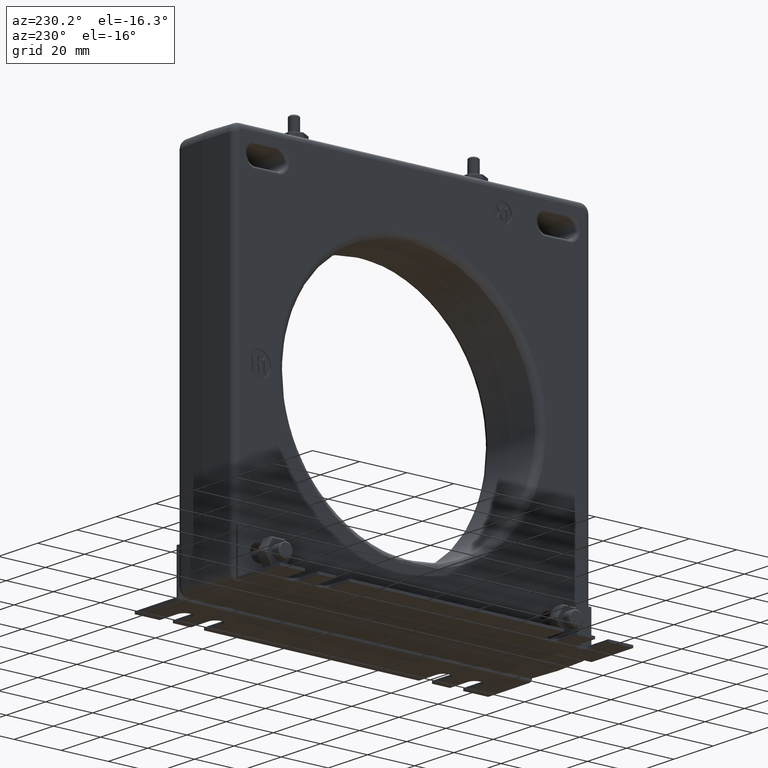
[diagram: clean part render]
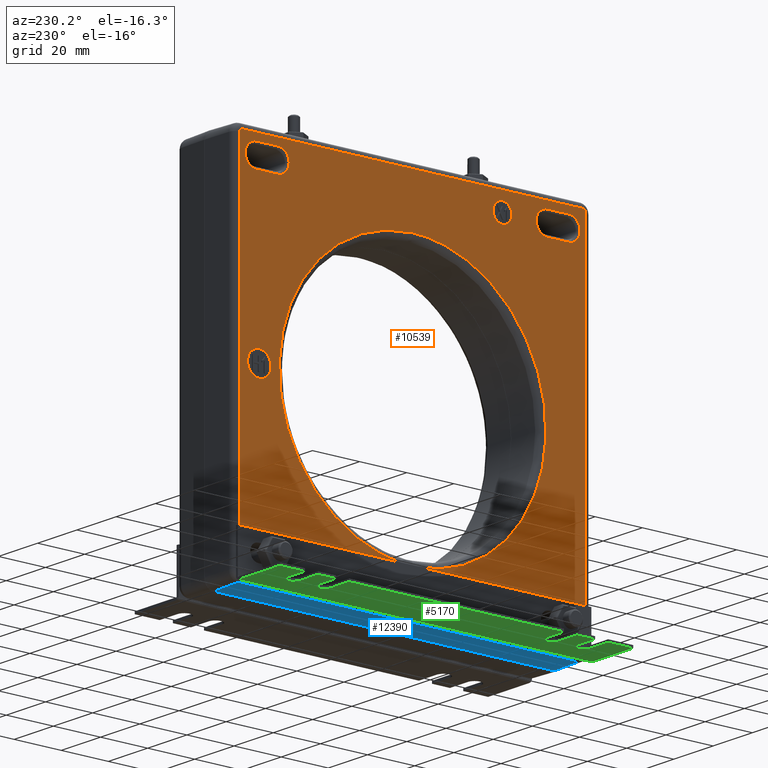
[diagram: same view with three faces highlighted in distinct colors, each labeled with its STEP entity id]
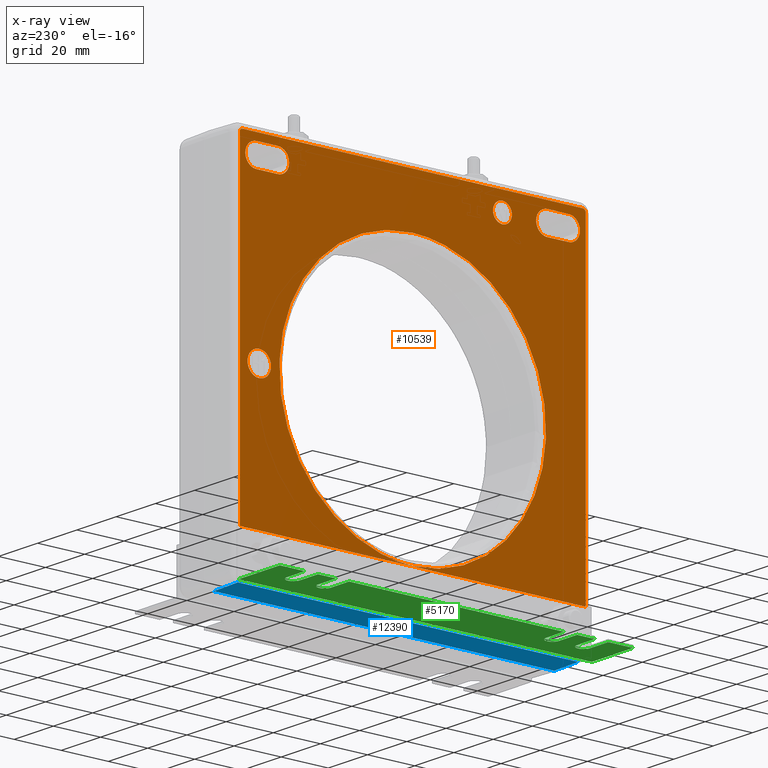
[diagram: x-ray of the same camera — body ghosted, the three highlighted faces saturated]
A machine part, auxiliary view with three faces highlighted in distinct colors.
The next image is the same camera in x-ray (body ghosted, the three faces saturated) — at least one of them is partly hidden behind the body in this view.
Their STEP definitions:

[orange] entity #10539 — the highlighted planar face has unit normal (1, -0, 0).
#8 = EDGE_CURVE ( 'NONE', #6791, #3299, #5995, .T. ) ;
#23 = ORIENTED_EDGE ( 'NONE', *, *, #3045, .F. ) ;
#39 = CARTESIAN_POINT ( 'NONE',  ( 0.03937007874015709119, 2.984544856102480104, 2.967351168208721912 ) ) ;
#58 = CARTESIAN_POINT ( 'NONE',  ( 0.03937007874013123687, 2.875911725223088133, 3.074239678267728593 ) ) ;
#60 = CARTESIAN_POINT ( 'NONE',  ( 0.03937007932118085501, -2.868262743863326136, 3.080604910952083664 ) ) ;
#213 = VERTEX_POINT ( 'NONE', #11847 ) ;
#233 = ORIENTED_EDGE ( 'NONE', *, *, #13495, .F. ) ;
#257 = DIRECTION ( 'NONE',  ( 0.000000000000000000, -1.000000000000000000, 0.000000000000000000 ) ) ;
#297 = CARTESIAN_POINT ( 'NONE',  ( 0.03937007874015716058, 1.092355033000180582E-15, 2.227586232135137845 ) ) ;
#358 = VERTEX_POINT ( 'NONE', #13406 ) ;
#365 = CARTESIAN_POINT ( 'NONE',  ( 0.03937007874015925613, 2.886794322883996067, 3.056195479470045662 ) ) ;
#514 = EDGE_CURVE ( 'NONE', #8427, #13134, #5406, .T. ) ;
#527 = DIRECTION ( 'NONE',  ( 0.000000000000000000, 0.000000000000000000, 1.000000000000000000 ) ) ;
#667 = LINE ( 'NONE', #7911, #6697 ) ;
#691 = EDGE_LOOP ( 'NONE', ( #233, #13355 ) ) ;
#868 = EDGE_CURVE ( 'NONE', #3836, #8944, #8519, .T. ) ;
#876 = CARTESIAN_POINT ( 'NONE',  ( 0.03937007912951403371, -2.867489077886231641, 3.081105248798122087 ) ) ;
#920 = CARTESIAN_POINT ( 'NONE',  ( 0.03937007874015712589, -2.250787401574803059, 2.967351168208720580 ) ) ;
#941 = CARTESIAN_POINT ( 'NONE',  ( 0.03937007882740609088, 2.854704344099860069, 3.087150549587978965 ) ) ;
#944 = CARTESIAN_POINT ( 'NONE',  ( 0.03937007918682389196, -2.867739048436531935, 3.080945258667302955 ) ) ;
#1009 = CARTESIAN_POINT ( 'NONE',  ( 0.03937007874054125611, 2.876492336291589957, 3.073633746084799334 ) ) ;
#1058 = DIRECTION ( 'NONE',  ( -1.000000000000000000, 0.000000000000000000, 0.000000000000000000 ) ) ;
#1080 = DIRECTION ( 'NONE',  ( -1.000000000000000000, 0.000000000000000000, 0.000000000000000000 ) ) ;
#1149 = CARTESIAN_POINT ( 'NONE',  ( 0.03937007885228872850, -2.865715039722779522, 3.082186250394237881 ) ) ;
#1244 = ORIENTED_EDGE ( 'NONE', *, *, #514, .F. ) ;
#1337 = CARTESIAN_POINT ( 'NONE',  ( 0.03937007874017462578, -2.875055753215716159, 3.075098263495993578 ) ) ;
#1376 = CARTESIAN_POINT ( 'NONE',  ( 0.03937007874015816672, 2.889066668023060558, 3.041811023622048360 ) ) ;
#1461 = ORIENTED_EDGE ( 'NONE', *, *, #4374, .F. ) ;
#1591 = LINE ( 'NONE', #12039, #11745 ) ;
#1611 = CIRCLE ( 'NONE', #2929, 0.1576521036964847189 ) ;
#1613 = EDGE_CURVE ( 'NONE', #358, #5997, #3309, .T. ) ;
#1630 = ORIENTED_EDGE ( 'NONE', *, *, #11956, .F. ) ;
#1725 = DIRECTION ( 'NONE',  ( -0.000000000000000000, 1.000000000000000000, -0.000000000000000000 ) ) ;
#1782 = EDGE_CURVE ( 'NONE', #13134, #9885, #3286, .T. ) ;
#1892 = ORIENTED_EDGE ( 'NONE', *, *, #1782, .F. ) ;
#1898 = CARTESIAN_POINT ( 'NONE',  ( 0.03937007874015925613, 2.871126934361459160, 3.079035056132509052 ) ) ;
#1900 = CARTESIAN_POINT ( 'NONE',  ( 0.03937007874015924919, -2.854100659624773773, 3.086918014856930625 ) ) ;
#1912 =( BOUNDED_CURVE ( )  B_SPLINE_CURVE ( 3, ( #8233, #39, #9182, #5027 ),
 .UNSPECIFIED., .F., .T. ) 
 B_SPLINE_CURVE_WITH_KNOTS ( ( 4, 4 ),
 ( 0.000000000000000000, 1.000000000000000000 ),
 .UNSPECIFIED. ) 
 CURVE ( )  GEOMETRIC_REPRESENTATION_ITEM ( )  RATIONAL_B_SPLINE_CURVE ( ( 1.000000000000000000, 0.3333333333333324822, 0.3333333333333324822, 1.000000000000000000 ) ) 
 REPRESENTATION_ITEM ( '' )  );
#1972 = CARTESIAN_POINT ( 'NONE',  ( 0.03937007874015924919, -2.861124805347352140, 3.084507341248539980 ) ) ;
#2008 = VERTEX_POINT ( 'NONE', #8915 ) ;
#2053 = CARTESIAN_POINT ( 'NONE',  ( 0.03937007874015724385, 8.195543980992795572E-16, 0.000000000000000000 ) ) ;
#2054 = AXIS2_PLACEMENT_3D ( 'NONE', #6737, #2779, #527 ) ;
#2112 = DIRECTION ( 'NONE',  ( 0.000000000000000000, 1.000000000000000000, 0.000000000000000000 ) ) ;
#2142 = EDGE_CURVE ( 'NONE', #3074, #6791, #1912, .T. ) ;
#2227 = VECTOR ( 'NONE', #2112, 39.37007874015748143 ) ;
#2408 = CARTESIAN_POINT ( 'NONE',  ( 0.03937007874015926306, 2.887014819090822915, 3.055498213693757403 ) ) ;
#2448 = CARTESIAN_POINT ( 'NONE',  ( 0.03937007874015712589, 2.250787401574803503, 2.967351168208720580 ) ) ;
#2514 = CARTESIAN_POINT ( 'NONE',  ( 0.03937007874054128387, -2.874342407456721205, 3.075783674916765964 ) ) ;
#2542 = CARTESIAN_POINT ( 'NONE',  ( 0.03937007873922650225, 2.562593993024535166, 0.1970221824366593100 ) ) ;
#2709 = CARTESIAN_POINT ( 'NONE',  ( 0.03937007874015712589, 2.609055118110235938, 2.967351168208720580 ) ) ;
#2735 = CARTESIAN_POINT ( 'NONE',  ( 0.03937007874015724385, 8.195543980992795572E-16, -2.233385826771653537 ) ) ;
#2779 = DIRECTION ( 'NONE',  ( -1.000000000000000000, 0.000000000000000000, 0.000000000000000000 ) ) ;
#2814 = CIRCLE ( 'NONE', #3469, 0.1970221824366593100 ) ;
#2881 = VERTEX_POINT ( 'NONE', #4929 ) ;
#2911 = CARTESIAN_POINT ( 'NONE',  ( 0.03937007874015816672, 2.842519685039370803, 3.088358006605736339 ) ) ;
#2929 = AXIS2_PLACEMENT_3D ( 'NONE', #4879, #13255, #12105 ) ;
#2945 = DIRECTION ( 'NONE',  ( 0.000000000000000000, 0.000000000000000000, -1.000000000000000000 ) ) ;
#2959 = EDGE_CURVE ( 'NONE', #8944, #12078, #5237, .T. ) ;
#2981 = CARTESIAN_POINT ( 'NONE',  ( 0.03937007874015712589, -2.250787401574803503, 2.591861430216476414 ) ) ;
#2988 = CARTESIAN_POINT ( 'NONE',  ( 0.03937007874015709119, 2.429921259842519721, 2.591861430216476414 ) ) ;
#2997 = CARTESIAN_POINT ( 'NONE',  ( 0.03937007874017461884, 2.875806924888862248, 3.074347091823399936 ) ) ;
#3045 = EDGE_CURVE ( 'NONE', #12971, #7664, #12948, .T. ) ;
#3067 = CARTESIAN_POINT ( 'NONE',  ( 0.03937007922697351864, 2.881546734775374929, 3.067196697129933813 ) ) ;
#3069 = CARTESIAN_POINT ( 'NONE',  ( 0.03937007874015925613, -2.845444069232907491, 3.088358006605735895 ) ) ;
#3074 = VERTEX_POINT ( 'NONE', #2709 ) ;
#3076 = DIRECTION ( 'NONE',  ( 1.000000000000000000, -0.000000000000000000, 0.000000000000000000 ) ) ;
#3199 = CARTESIAN_POINT ( 'NONE',  ( 0.03937007929754087615, 2.881034830706037830, 3.067979814916627301 ) ) ;
#3264 = CARTESIAN_POINT ( 'NONE',  ( 0.03937007874015709119, 8.195543980992795572E-16, 2.967351168208720580 ) ) ;
#3286 = B_SPLINE_CURVE_WITH_KNOTS ( 'NONE', 3,
 ( #1376, #5560, #8690, #10740, #9722, #2408, #365, #4531, #3436, #12550, #13499, #9278, #8248, #12343, #7096, #12410, #3067, #11324, #13363, #3199, #6207, #7225, #9407, #6006, #7364, #11260, #11464, #5112, #1009, #5180, #58, #2997, #4015, #11523, #1898, #4150, #941, #4224, #11390 ),
 .UNSPECIFIED., .F., .F.,
 ( 4, 2, 2, 2, 2, 2, 1, 1, 1, 2, 2, 2, 2, 2, 2, 2, 2, 2, 2, 2, 4 ),
 ( 0.000000000000000000, 0.1250000000006452061, 0.1875000000009656442, 0.2187500000011225743, 0.2500000000012795320, 0.3125000000015854540, 0.3437500000017430501, 0.3593750000018273161, 0.3671875000018751112, 0.3710937500019047541, 0.3750000000019343971, 0.4062500000018812174, 0.4218750000018609003, 0.4296875000018459123, 0.4375000000018309243, 0.4687500000017882362, 0.4843750000017741364, 0.4921875000017482682, 0.5000000000017222890, 0.7500000000008612000, 1.000000000000000000 ),
 .UNSPECIFIED. ) ;
#3299 = VERTEX_POINT ( 'NONE', #8168 ) ;
#3309 =( BOUNDED_CURVE ( )  B_SPLINE_CURVE ( 3, ( #7407, #12720, #11501, #297 ),
 .UNSPECIFIED., .F., .T. ) 
 B_SPLINE_CURVE_WITH_KNOTS ( ( 4, 4 ),
 ( 0.000000000000000000, 0.5000000000000000000 ),
 .UNSPECIFIED. ) 
 CURVE ( )  GEOMETRIC_REPRESENTATION_ITEM ( )  RATIONAL_B_SPLINE_CURVE ( ( 1.000000000000000000, 0.3333333333333333703, 0.3333333333333333703, 1.000000000000000000 ) ) 
 REPRESENTATION_ITEM ( '' )  );
#3436 = CARTESIAN_POINT ( 'NONE',  ( 0.03937007874015926306, 2.886089786568104110, 3.058209010741597567 ) ) ;
#3465 = CARTESIAN_POINT ( 'NONE',  ( 0.03937007874013123687, -2.874948339655312601, 3.075203063834647033 ) ) ;
#3467 = CARTESIAN_POINT ( 'NONE',  ( 0.03937007874015709119, -2.984544856102480992, 2.967351168208720580 ) ) ;
#3469 = AXIS2_PLACEMENT_3D ( 'NONE', #9324, #1058, #13479 ) ;
#3533 = CARTESIAN_POINT ( 'NONE',  ( 0.03937007882740607700, -2.883195426353780899, 3.065255054840221760 ) ) ;
#3547 = CARTESIAN_POINT ( 'NONE',  ( 0.03937007873922650225, -1.500000000000000222, 2.937967064326405975 ) ) ;
#3836 = VERTEX_POINT ( 'NONE', #2981 ) ;
#3923 = EDGE_CURVE ( 'NONE', #7664, #12971, #2814, .T. ) ;
#3931 = VECTOR ( 'NONE', #6064, 39.37007874015748143 ) ;
#3940 = CARTESIAN_POINT ( 'NONE',  ( 0.03937007874015712589, -2.250787401574803503, 2.591861430216476414 ) ) ;
#4015 = CARTESIAN_POINT ( 'NONE',  ( 0.03937007874018861459, 2.875610315565484409, 3.074547002419122599 ) ) ;
#4018 = CARTESIAN_POINT ( 'NONE',  ( 0.03937007898571268094, -2.870897232921580056, 3.078717343461822686 ) ) ;
#4026 = FACE_BOUND ( 'NONE', #7437, .T. ) ;
#4150 = CARTESIAN_POINT ( 'NONE',  ( 0.03937007882740607700, 2.865963716257544647, 3.082486764936458012 ) ) ;
#4153 = CARTESIAN_POINT ( 'NONE',  ( 0.03937007877037100589, -2.872747233411221846, 3.077229139774823263 ) ) ;
#4161 = CARTESIAN_POINT ( 'NONE',  ( 0.03937007874015712589, -2.609055118110235938, 2.967351168208720580 ) ) ;
#4224 = CARTESIAN_POINT ( 'NONE',  ( 0.03937007874015925613, 2.848612670863884144, 3.088360769420047891 ) ) ;
#4227 = CARTESIAN_POINT ( 'NONE',  ( 0.03937007874015816672, -2.842519685039369470, 3.088358006605736339 ) ) ;
#4365 = ORIENTED_EDGE ( 'NONE', *, *, #6265, .F. ) ;
#4374 = EDGE_CURVE ( 'NONE', #9885, #2881, #5861, .T. ) ;
#4435 = EDGE_CURVE ( 'NONE', #12078, #8825, #7161, .T. ) ;
#4448 = CARTESIAN_POINT ( 'NONE',  ( 0.03937007874015707037, 2.889066668023061890, 0.1146456692913393749 ) ) ;
#4485 = VECTOR ( 'NONE', #257, 39.37007874015748143 ) ;
#4523 = EDGE_CURVE ( 'NONE', #2881, #13505, #9818, .T. ) ;
#4531 = CARTESIAN_POINT ( 'NONE',  ( 0.03937007874015924919, 2.886320732246605125, 3.057578851305826184 ) ) ;
#4627 = CARTESIAN_POINT ( 'NONE',  ( 0.03937007874018861459, -2.875255663822641861, 3.074901654161837250 ) ) ;
#4636 = CARTESIAN_POINT ( 'NONE',  ( 0.03937007874015708425, 1.875297663582557783, 2.591861430216476414 ) ) ;
#4871 = VECTOR ( 'NONE', #8057, 39.37007874015748143 ) ;
#4879 = CARTESIAN_POINT ( 'NONE',  ( 0.03937007873922650225, -1.500000000000000222, 2.780314960629921561 ) ) ;
#4929 = CARTESIAN_POINT ( 'NONE',  ( 0.03937007874015816672, -2.842519685039369470, 3.088358006605736339 ) ) ;
#5004 = CARTESIAN_POINT ( 'NONE',  ( 0.03937007873922650225, 2.562593993024535166, -0.1970221824366593100 ) ) ;
#5027 = CARTESIAN_POINT ( 'NONE',  ( 0.03937007874015712589, 2.609055118110116034, 2.591861430216476858 ) ) ;
#5043 = CARTESIAN_POINT ( 'NONE',  ( 0.03937007873922650225, -1.500000000000000222, 2.780314960629921561 ) ) ;
#5046 = CARTESIAN_POINT ( 'NONE',  ( 0.03937007911091189999, -2.870031023678087490, 3.079372066062535662 ) ) ;
#5053 = FACE_OUTER_BOUND ( 'NONE', #8725, .T. ) ;
#5112 = CARTESIAN_POINT ( 'NONE',  ( 0.03937007875187067268, 2.877303757845250498, 3.072754310227568286 ) ) ;
#5154 =( BOUNDED_CURVE ( )  B_SPLINE_CURVE ( 3, ( #6946, #9131, #13290, #3940 ),
 .UNSPECIFIED., .F., .T. ) 
 B_SPLINE_CURVE_WITH_KNOTS ( ( 4, 4 ),
 ( 0.000000000000000000, 1.000000000000000000 ),
 .UNSPECIFIED. ) 
 CURVE ( )  GEOMETRIC_REPRESENTATION_ITEM ( )  RATIONAL_B_SPLINE_CURVE ( ( 1.000000000000000000, 0.3333333333333338144, 0.3333333333333338144, 1.000000000000000000 ) ) 
 REPRESENTATION_ITEM ( '' )  );
#5180 = CARTESIAN_POINT ( 'NONE',  ( 0.03937007874027449728, 2.876244985067139215, 3.073894476164710898 ) ) ;
#5183 = CIRCLE ( 'NONE', #12794, 0.1576521036964847189 ) ;
#5205 = EDGE_LOOP ( 'NONE', ( #12008, #7356, #5916, #11026 ) ) ;
#5237 =( BOUNDED_CURVE ( )  B_SPLINE_CURVE ( 3, ( #8518, #12676, #3467, #12877 ),
 .UNSPECIFIED., .F., .T. ) 
 B_SPLINE_CURVE_WITH_KNOTS ( ( 4, 4 ),
 ( 0.000000000000000000, 1.000000000000000000 ),
 .UNSPECIFIED. ) 
 CURVE ( )  GEOMETRIC_REPRESENTATION_ITEM ( )  RATIONAL_B_SPLINE_CURVE ( ( 1.000000000000000000, 0.3333333333333342585, 0.3333333333333342585, 1.000000000000000000 ) ) 
 REPRESENTATION_ITEM ( '' )  );
#5321 = CARTESIAN_POINT ( 'NONE',  ( 0.03937007916828393767, -2.869654650071805868, 3.079643898618940501 ) ) ;
#5388 = CARTESIAN_POINT ( 'NONE',  ( 0.03937007874027449034, -2.874603137540768127, 3.075536323689139540 ) ) ;
#5392 = CARTESIAN_POINT ( 'NONE',  ( 0.03937007874015709119, 8.195543980992795572E-16, 2.591861430216476414 ) ) ;
#5406 = LINE ( 'NONE', #4448, #9139 ) ;
#5560 = CARTESIAN_POINT ( 'NONE',  ( 0.03937007874015924919, 2.889066668023058337, 3.044735407815586381 ) ) ;
#5854 = CARTESIAN_POINT ( 'NONE',  ( 0.03937007874015708425, 1.875297663582557783, 2.967351168208722356 ) ) ;
#5861 = LINE ( 'NONE', #12138, #9428 ) ;
#5916 = ORIENTED_EDGE ( 'NONE', *, *, #7255, .F. ) ;
#5930 = DIRECTION ( 'NONE',  ( -0.000000000000000000, -1.000000000000000000, -0.000000000000000000 ) ) ;
#5995 = LINE ( 'NONE', #2988, #3931 ) ;
#5997 = VERTEX_POINT ( 'NONE', #9395 ) ;
#6006 = CARTESIAN_POINT ( 'NONE',  ( 0.03937007898571265319, 2.879426004894307223, 3.070188571484436579 ) ) ;
#6064 = DIRECTION ( 'NONE',  ( -0.000000000000000000, -1.000000000000000000, -0.000000000000000000 ) ) ;
#6072 = CARTESIAN_POINT ( 'NONE',  ( 0.03937007874015816672, -2.889066668023059226, 3.041811023622047028 ) ) ;
#6074 = CARTESIAN_POINT ( 'NONE',  ( 0.03937007874015925613, -2.856904140887368548, 3.086085661466673624 ) ) ;
#6192 =( BOUNDED_CURVE ( )  B_SPLINE_CURVE ( 3, ( #7906, #4636, #5854, #2448 ),
 .UNSPECIFIED., .F., .T. ) 
 B_SPLINE_CURVE_WITH_KNOTS ( ( 4, 4 ),
 ( 0.000000000000000000, 1.000000000000000000 ),
 .UNSPECIFIED. ) 
 CURVE ( )  GEOMETRIC_REPRESENTATION_ITEM ( )  RATIONAL_B_SPLINE_CURVE ( ( 1.000000000000000000, 0.3333333333333329263, 0.3333333333333329263, 1.000000000000000000 ) ) 
 REPRESENTATION_ITEM ( '' )  );
#6207 = CARTESIAN_POINT ( 'NONE',  ( 0.03937007916828392379, 2.880352560062015232, 3.068945988618324794 ) ) ;
#6210 = CARTESIAN_POINT ( 'NONE',  ( 0.03937007874015925613, -2.858287512723149071, 3.085612070829283571 ) ) ;
#6265 = EDGE_CURVE ( 'NONE', #2008, #3074, #1591, .T. ) ;
#6337 = CARTESIAN_POINT ( 'NONE',  ( 0.03937007922697351170, -2.867905358547250483, 3.080838073358117324 ) ) ;
#6536 = CARTESIAN_POINT ( 'NONE',  ( 0.03937007874015924919, -2.875298674063444526, 3.074859287120758733 ) ) ;
#6602 = ORIENTED_EDGE ( 'NONE', *, *, #4523, .F. ) ;
#6678 = ORIENTED_EDGE ( 'NONE', *, *, #2142, .F. ) ;
#6697 = VECTOR ( 'NONE', #10094, 39.37007874015748143 ) ;
#6713 = CARTESIAN_POINT ( 'NONE',  ( 0.03937007874015712589, -2.609055118109756322, 2.591861430216476414 ) ) ;
#6737 = CARTESIAN_POINT ( 'NONE',  ( 0.03937007873922650225, 2.562593993024535166, 0.000000000000000000 ) ) ;
#6791 = VERTEX_POINT ( 'NONE', #11807 ) ;
#6946 = CARTESIAN_POINT ( 'NONE',  ( 0.03937007874015712589, -2.250787401574803059, 2.967351168208720580 ) ) ;
#7093 = EDGE_CURVE ( 'NONE', #3299, #2008, #6192, .T. ) ;
#7096 = CARTESIAN_POINT ( 'NONE',  ( 0.03937007912951403371, 2.881813910215384134, 3.066780416468914527 ) ) ;
#7161 = LINE ( 'NONE', #3264, #2227 ) ;
#7225 = CARTESIAN_POINT ( 'NONE',  ( 0.03937007911091188611, 2.880080727503860238, 3.069322362227906886 ) ) ;
#7229 = CARTESIAN_POINT ( 'NONE',  ( 0.03937007874015924919, -2.852677283176246359, 3.087259707109045959 ) ) ;
#7232 = ORIENTED_EDGE ( 'NONE', *, *, #7093, .F. ) ;
#7235 = FACE_BOUND ( 'NONE', #691, .T. ) ;
#7255 = EDGE_CURVE ( 'NONE', #8825, #3836, #5154, .T. ) ;
#7356 = ORIENTED_EDGE ( 'NONE', *, *, #868, .F. ) ;
#7364 = CARTESIAN_POINT ( 'NONE',  ( 0.03937007892271938286, 2.879053924936663567, 3.070664481866840934 ) ) ;
#7407 = CARTESIAN_POINT ( 'NONE',  ( 0.03937007874015716058, 8.195543980992795572E-16, -2.227586232135137845 ) ) ;
#7437 = EDGE_LOOP ( 'NONE', ( #23, #8609 ) ) ;
#7484 = ORIENTED_EDGE ( 'NONE', *, *, #11198, .F. ) ;
#7522 = DIRECTION ( 'NONE',  ( -0.000000000000000000, -3.542511246410839985E-16, 1.000000000000000000 ) ) ;
#7664 = VERTEX_POINT ( 'NONE', #5004 ) ;
#7699 = CARTESIAN_POINT ( 'NONE',  ( 0.03937007882740607700, -2.887859211005301407, 3.053995682682536739 ) ) ;
#7861 = LINE ( 'NONE', #2735, #4871 ) ;
#7906 = CARTESIAN_POINT ( 'NONE',  ( 0.03937007874015712589, 2.250787401574803503, 2.591861430216476414 ) ) ;
#7911 = CARTESIAN_POINT ( 'NONE',  ( 0.03937007874015707037, -2.889066668023058782, 0.1146456692913378067 ) ) ;
#8057 = DIRECTION ( 'NONE',  ( 0.000000000000000000, 1.000000000000000000, 0.000000000000000000 ) ) ;
#8089 = CARTESIAN_POINT ( 'NONE',  ( 0.03937007874015707037, 4.455172464270276578, 2.227586232135137401 ) ) ;
#8168 = CARTESIAN_POINT ( 'NONE',  ( 0.03937007874015712589, 2.250787401574803503, 2.591861430216476414 ) ) ;
#8184 = CARTESIAN_POINT ( 'NONE',  ( 0.03937007888693583313, -2.871668457839289257, 3.078109102014213505 ) ) ;
#8197 = CARTESIAN_POINT ( 'NONE',  ( 0.03937007874015816672, 2.889066668023060558, 3.041811023622048360 ) ) ;
#8233 = CARTESIAN_POINT ( 'NONE',  ( 0.03937007874015712589, 2.609055118110235938, 2.967351168208720580 ) ) ;
#8248 = CARTESIAN_POINT ( 'NONE',  ( 0.03937007885228870768, 2.882894911811522576, 3.065006378305468182 ) ) ;
#8324 = CARTESIAN_POINT ( 'NONE',  ( 0.03937007879536144617, -2.864674792987554230, 3.082758745711915438 ) ) ;
#8426 = EDGE_LOOP ( 'NONE', ( #6678, #4365, #7232, #11072 ) ) ;
#8427 = VERTEX_POINT ( 'NONE', #9543 ) ;
#8518 = CARTESIAN_POINT ( 'NONE',  ( 0.03937007874015712589, -2.609055118109756322, 2.591861430216476414 ) ) ;
#8519 = LINE ( 'NONE', #5392, #4485 ) ;
#8609 = ORIENTED_EDGE ( 'NONE', *, *, #3923, .F. ) ;
#8690 = CARTESIAN_POINT ( 'NONE',  ( 0.03937007874015926306, 2.888790261807281823, 3.047659730603943018 ) ) ;
#8725 = EDGE_LOOP ( 'NONE', ( #1630, #11908, #6602, #1461, #1892, #1244 ) ) ;
#8825 = VERTEX_POINT ( 'NONE', #920 ) ;
#8835 = CARTESIAN_POINT ( 'NONE',  ( 0.03937007874015739650, -2.889066668023057005, -2.233385826771653537 ) ) ;
#8915 = CARTESIAN_POINT ( 'NONE',  ( 0.03937007874015712589, 2.250787401574803503, 2.967351168208720580 ) ) ;
#8944 = VERTEX_POINT ( 'NONE', #6713 ) ;
#9131 = CARTESIAN_POINT ( 'NONE',  ( 0.03937007874015709119, -1.875297663582560670, 2.967351168208720136 ) ) ;
#9139 = VECTOR ( 'NONE', #7522, 39.37007874015748143 ) ;
#9144 = FACE_BOUND ( 'NONE', #8426, .T. ) ;
#9182 = CARTESIAN_POINT ( 'NONE',  ( 0.03937007874015709119, 2.984544856102480104, 2.591861430216477302 ) ) ;
#9206 = CARTESIAN_POINT ( 'NONE',  ( 0.03937007892271939674, -2.871373143295053776, 3.078345263510787078 ) ) ;
#9278 = CARTESIAN_POINT ( 'NONE',  ( 0.03937007879536146004, 2.883467407129212123, 3.063966131570244666 ) ) ;
#9281 = CARTESIAN_POINT ( 'NONE',  ( 0.03937007901782763747, -2.870671239959057708, 3.078890292664638206 ) ) ;
#9301 = VERTEX_POINT ( 'NONE', #3547 ) ;
#9324 = CARTESIAN_POINT ( 'NONE',  ( 0.03937007873922650225, 2.562593993024535166, 0.000000000000000000 ) ) ;
#9395 = CARTESIAN_POINT ( 'NONE',  ( 0.03937007874015716058, 1.092355033000180582E-15, 2.227586232135137845 ) ) ;
#9407 = CARTESIAN_POINT ( 'NONE',  ( 0.03937007901782762359, 2.879598954099777064, 3.069962578518120822 ) ) ;
#9410 = CARTESIAN_POINT ( 'NONE',  ( 0.03937007872911880285, -2.862566806633510375, 3.083850510613176610 ) ) ;
#9428 = VECTOR ( 'NONE', #5930, 39.37007874015748143 ) ;
#9543 = CARTESIAN_POINT ( 'NONE',  ( 0.03937007874015699405, 2.889066668023063222, -2.233385826771653537 ) ) ;
#9552 = EDGE_LOOP ( 'NONE', ( #12176, #7484 ) ) ;
#9722 = CARTESIAN_POINT ( 'NONE',  ( 0.03937007874015925613, 2.887626676274253956, 3.053391998207450442 ) ) ;
#9818 = B_SPLINE_CURVE_WITH_KNOTS ( 'NONE', 3,
 ( #4227, #3069, #11262, #7229, #1900, #11393, #6074, #6210, #13502, #1972, #9410, #8324, #1149, #10237, #876, #944, #6337, #10372, #60, #10502, #5321, #5046, #9281, #4018, #9206, #8184, #4153, #12481, #2514, #5388, #3465, #1337, #4627, #6536, #12875, #3533, #7699, #11862, #12944 ),
 .UNSPECIFIED., .F., .F.,
 ( 4, 2, 2, 2, 2, 2, 1, 1, 1, 2, 2, 2, 2, 2, 2, 2, 2, 2, 2, 2, 4 ),
 ( 0.000000000000000000, 0.1249999999998843425, 0.1874999999998265277, 0.2187499999997943589, 0.2499999999997621902, 0.3124999999996777578, 0.3437499999996355693, 0.3593749999996199151, 0.3671874999996177502, 0.3710937499996199707, 0.3749999999996221911, 0.4062499999996376232, 0.4218749999996390665, 0.4296874999996397881, 0.4374999999996405098, 0.4687499999996628253, 0.4843749999996745381, 0.4921874999996804223, 0.4999999999996863620, 0.7499999999998431255, 1.000000000000000000 ),
 .UNSPECIFIED. ) ;
#9885 = VERTEX_POINT ( 'NONE', #2911 ) ;
#10094 = DIRECTION ( 'NONE',  ( -0.000000000000000000, 1.771255623205419992E-16, -1.000000000000000000 ) ) ;
#10124 = VERTEX_POINT ( 'NONE', #8835 ) ;
#10211 = EDGE_CURVE ( 'NONE', #213, #9301, #1611, .T. ) ;
#10237 = CARTESIAN_POINT ( 'NONE',  ( 0.03937007901489803646, -2.866902310100226003, 3.081473022383938165 ) ) ;
#10372 = CARTESIAN_POINT ( 'NONE',  ( 0.03937007926371533656, -2.868047213854255872, 3.080745750052186427 ) ) ;
#10502 = CARTESIAN_POINT ( 'NONE',  ( 0.03937007929754089003, -2.868688476370757634, 3.080326169263890357 ) ) ;
#10539 = ADVANCED_FACE ( 'NONE', ( #4026, #7235, #5053, #12420, #9144, #13305 ), #13377, .F. ) ;
#10740 = CARTESIAN_POINT ( 'NONE',  ( 0.03937007874015926306, 2.887968368526370178, 3.051968621758924360 ) ) ;
#11026 = ORIENTED_EDGE ( 'NONE', *, *, #4435, .F. ) ;
#11072 = ORIENTED_EDGE ( 'NONE', *, *, #8, .F. ) ;
#11198 = EDGE_CURVE ( 'NONE', #5997, #358, #12564, .T. ) ;
#11260 = CARTESIAN_POINT ( 'NONE',  ( 0.03937007888693581925, 2.878817763438016097, 3.070959796413925691 ) ) ;
#11262 = CARTESIAN_POINT ( 'NONE',  ( 0.03937007874015925613, -2.848368392021265905, 3.088081600389959824 ) ) ;
#11324 = CARTESIAN_POINT ( 'NONE',  ( 0.03937007926371532962, 2.881454411467417653, 3.067338552440037169 ) ) ;
#11390 = CARTESIAN_POINT ( 'NONE',  ( 0.03937007874015816672, 2.842519685039370803, 3.088358006605736339 ) ) ;
#11391 = DIRECTION ( 'NONE',  ( 0.000000000000000000, 0.000000000000000000, 1.000000000000000000 ) ) ;
#11393 = CARTESIAN_POINT ( 'NONE',  ( 0.03937007874015926306, -2.856206875111080290, 3.086306157673500472 ) ) ;
#11464 = CARTESIAN_POINT ( 'NONE',  ( 0.03937007877037097814, 2.877937801165976861, 3.072038572026079883 ) ) ;
#11501 = CARTESIAN_POINT ( 'NONE',  ( 0.03937007874015707037, -4.455172464270273913, 2.227586232135138733 ) ) ;
#11523 = CARTESIAN_POINT ( 'NONE',  ( 0.03937007874015925613, 2.875567948538081620, 3.074590012646122528 ) ) ;
#11655 = AXIS2_PLACEMENT_3D ( 'NONE', #2053, #3076, #2945 ) ;
#11745 = VECTOR ( 'NONE', #1725, 39.37007874015748143 ) ;
#11807 = CARTESIAN_POINT ( 'NONE',  ( 0.03937007874015712589, 2.609055118110116034, 2.591861430216476858 ) ) ;
#11847 = CARTESIAN_POINT ( 'NONE',  ( 0.03937007873922650225, -1.500000000000000222, 2.622662856933436704 ) ) ;
#11862 = CARTESIAN_POINT ( 'NONE',  ( 0.03937007874015925613, -2.889069430837370334, 3.047904009446561258 ) ) ;
#11908 = ORIENTED_EDGE ( 'NONE', *, *, #13338, .F. ) ;
#11956 = EDGE_CURVE ( 'NONE', #10124, #8427, #7861, .T. ) ;
#12008 = ORIENTED_EDGE ( 'NONE', *, *, #2959, .F. ) ;
#12039 = CARTESIAN_POINT ( 'NONE',  ( 0.03937007874015709119, 2.429921259842519721, 2.967351168208720580 ) ) ;
#12078 = VERTEX_POINT ( 'NONE', #4161 ) ;
#12105 = DIRECTION ( 'NONE',  ( 0.000000000000000000, 0.000000000000000000, 1.000000000000000000 ) ) ;
#12138 = CARTESIAN_POINT ( 'NONE',  ( 0.03937007874015707037, 1.912293595564984056E-15, 3.088358006605736339 ) ) ;
#12176 = ORIENTED_EDGE ( 'NONE', *, *, #1613, .F. ) ;
#12251 = CARTESIAN_POINT ( 'NONE',  ( 0.03937007874015707037, 4.455172464270276578, -2.227586232135137845 ) ) ;
#12343 = CARTESIAN_POINT ( 'NONE',  ( 0.03937007901489802952, 2.882181683801209537, 3.066193648682912443 ) ) ;
#12410 = CARTESIAN_POINT ( 'NONE',  ( 0.03937007918682389196, 2.881653920084562781, 3.067030387019214821 ) ) ;
#12420 = FACE_BOUND ( 'NONE', #9552, .T. ) ;
#12481 = CARTESIAN_POINT ( 'NONE',  ( 0.03937007875187067268, -2.873462971598404803, 3.076595096469263435 ) ) ;
#12550 = CARTESIAN_POINT ( 'NONE',  ( 0.03937007874015926306, 2.885216002665859314, 3.060416143930036359 ) ) ;
#12564 =( BOUNDED_CURVE ( )  B_SPLINE_CURVE ( 3, ( #13207, #8089, #12251, #13340 ),
 .UNSPECIFIED., .F., .F. ) 
 B_SPLINE_CURVE_WITH_KNOTS ( ( 4, 4 ),
 ( 0.5000000000000000000, 1.000000000000000000 ),
 .UNSPECIFIED. ) 
 CURVE ( )  GEOMETRIC_REPRESENTATION_ITEM ( )  RATIONAL_B_SPLINE_CURVE ( ( 1.000000000000000000, 0.3333333333333333703, 0.3333333333333333703, 1.000000000000000000 ) ) 
 REPRESENTATION_ITEM ( '' )  );
#12676 = CARTESIAN_POINT ( 'NONE',  ( 0.03937007874015709119, -2.984544856102480548, 2.591861430216476414 ) ) ;
#12720 = CARTESIAN_POINT ( 'NONE',  ( 0.03937007874015707037, -4.455172464270273913, -2.227586232135137845 ) ) ;
#12794 = AXIS2_PLACEMENT_3D ( 'NONE', #5043, #1080, #11391 ) ;
#12875 = CARTESIAN_POINT ( 'NONE',  ( 0.03937007874015925613, -2.879743717549832827, 3.070418272944135829 ) ) ;
#12877 = CARTESIAN_POINT ( 'NONE',  ( 0.03937007874015712589, -2.609055118110235938, 2.967351168208720580 ) ) ;
#12944 = CARTESIAN_POINT ( 'NONE',  ( 0.03937007874015816672, -2.889066668023059226, 3.041811023622047028 ) ) ;
#12948 = CIRCLE ( 'NONE', #2054, 0.1970221824366593100 ) ;
#12971 = VERTEX_POINT ( 'NONE', #2542 ) ;
#13134 = VERTEX_POINT ( 'NONE', #8197 ) ;
#13207 = CARTESIAN_POINT ( 'NONE',  ( 0.03937007874015716058, 1.092355033000180582E-15, 2.227586232135137845 ) ) ;
#13255 = DIRECTION ( 'NONE',  ( -1.000000000000000000, 0.000000000000000000, 0.000000000000000000 ) ) ;
#13290 = CARTESIAN_POINT ( 'NONE',  ( 0.03937007874015709119, -1.875297663582560670, 2.591861430216477302 ) ) ;
#13305 = FACE_BOUND ( 'NONE', #5205, .T. ) ;
#13338 = EDGE_CURVE ( 'NONE', #13505, #10124, #667, .T. ) ;
#13340 = CARTESIAN_POINT ( 'NONE',  ( 0.03937007874015716058, 8.195543980992795572E-16, -2.227586232135137845 ) ) ;
#13355 = ORIENTED_EDGE ( 'NONE', *, *, #10211, .F. ) ;
#13363 = CARTESIAN_POINT ( 'NONE',  ( 0.03937007932118084808, 2.881313572385540756, 3.067554082421211081 ) ) ;
#13377 = PLANE ( 'NONE',  #11655 ) ;
#13406 = CARTESIAN_POINT ( 'NONE',  ( 0.03937007874015716058, 8.195543980992795572E-16, -2.227586232135137845 ) ) ;
#13479 = DIRECTION ( 'NONE',  ( 0.000000000000000000, 0.000000000000000000, 1.000000000000000000 ) ) ;
#13495 = EDGE_CURVE ( 'NONE', #9301, #213, #5183, .T. ) ;
#13499 = CARTESIAN_POINT ( 'NONE',  ( 0.03937007872911880979, 2.884559172030489282, 3.061858145216198146 ) ) ;
#13502 = CARTESIAN_POINT ( 'NONE',  ( 0.03937007874015925613, -2.858917672158922674, 3.085381125150780335 ) ) ;
#13505 = VERTEX_POINT ( 'NONE', #6072 ) ;

[blue] entity #12390 — the highlighted planar face has unit normal (-0.0262, 0, -0.9997).
#400 = CARTESIAN_POINT ( 'NONE',  ( 19645.66929133858503, 2.842519685039373911, -517.3938719571056026 ) ) ;
#424 = ORIENTED_EDGE ( 'NONE', *, *, #9268, .F. ) ;
#792 = LINE ( 'NONE', #12326, #7472 ) ;
#805 = DIRECTION ( 'NONE',  ( -0.9996573249755572599, 0.000000000000000000, 0.02617694830787320459 ) ) ;
#1325 = EDGE_LOOP ( 'NONE', ( #424, #7920, #1935, #10526 ) ) ;
#1749 = CARTESIAN_POINT ( 'NONE',  ( 0.1352188043005803919, -2.842519685039371247, -2.957458137020289701 ) ) ;
#1935 = ORIENTED_EDGE ( 'NONE', *, *, #8805, .T. ) ;
#2119 = EDGE_CURVE ( 'NONE', #7249, #9213, #9326, .T. ) ;
#2909 = DIRECTION ( 'NONE',  ( 9.531591803919131266E-18, 1.000000000000000000, 3.639968056398278551E-16 ) ) ;
#2925 = CARTESIAN_POINT ( 'NONE',  ( 0.6122047244094452889, 2.842519685039373911, -2.969948452910292858 ) ) ;
#3065 = PLANE ( 'NONE',  #5090 ) ;
#3336 = DIRECTION ( 'NONE',  ( 0.000000000000000000, 1.000000000000000000, 0.000000000000000000 ) ) ;
#3413 = CARTESIAN_POINT ( 'NONE',  ( 0.6122047244098194341, -2.842519685039371247, -2.969948452910307957 ) ) ;
#3684 = VECTOR ( 'NONE', #2909, 39.37007874015748143 ) ;
#4077 = DIRECTION ( 'NONE',  ( -0.02617694830787320806, 3.641215810115012169E-16, -0.9996573249755573709 ) ) ;
#4368 = LINE ( 'NONE', #10446, #12310 ) ;
#4372 = DIRECTION ( 'NONE',  ( -0.9996573249763403002, 0.000000000000000000, 0.02617694827796848006 ) ) ;
#5090 = AXIS2_PLACEMENT_3D ( 'NONE', #8246, #4077, #805 ) ;
#6069 = FACE_OUTER_BOUND ( 'NONE', #1325, .T. ) ;
#6804 = VERTEX_POINT ( 'NONE', #3413 ) ;
#6891 = EDGE_CURVE ( 'NONE', #6804, #7271, #4368, .T. ) ;
#7249 = VERTEX_POINT ( 'NONE', #1749 ) ;
#7271 = VERTEX_POINT ( 'NONE', #2925 ) ;
#7472 = VECTOR ( 'NONE', #12185, 39.37007874015748854 ) ;
#7920 = ORIENTED_EDGE ( 'NONE', *, *, #6891, .F. ) ;
#8246 = CARTESIAN_POINT ( 'NONE',  ( 0.6141732283464567121, 3.035864673274146222E-15, -2.970000000000000195 ) ) ;
#8805 = EDGE_CURVE ( 'NONE', #6804, #7249, #792, .T. ) ;
#9213 = VERTEX_POINT ( 'NONE', #11540 ) ;
#9268 = EDGE_CURVE ( 'NONE', #7271, #9213, #9757, .T. ) ;
#9326 = LINE ( 'NONE', #12255, #3684 ) ;
#9757 = LINE ( 'NONE', #400, #12906 ) ;
#10446 = CARTESIAN_POINT ( 'NONE',  ( 0.6122047244094488416, 8.195543980992795572E-16, -2.969948452910299519 ) ) ;
#10526 = ORIENTED_EDGE ( 'NONE', *, *, #2119, .T. ) ;
#11540 = CARTESIAN_POINT ( 'NONE',  ( 0.1352188042985052741, 2.842519685039374355, -2.957458137023793565 ) ) ;
#12185 = DIRECTION ( 'NONE',  ( -0.9996573249755572599, 0.000000000000000000, 0.02617694830787320459 ) ) ;
#12255 = CARTESIAN_POINT ( 'NONE',  ( 0.1352188043004058371, 3.035864673274146222E-15, -2.957458137016715227 ) ) ;
#12310 = VECTOR ( 'NONE', #3336, 39.37007874015748143 ) ;
#12326 = CARTESIAN_POINT ( 'NONE',  ( 0.6141732283464567121, -2.842519685039371247, -2.970000000000001528 ) ) ;
#12390 = ADVANCED_FACE ( 'NONE', ( #6069 ), #3065, .T. ) ;
#12906 = VECTOR ( 'NONE', #4372, 39.37007874015748854 ) ;

[green] entity #5170 — the highlighted planar face has unit normal (0, 0, -1).
#189 = CARTESIAN_POINT ( 'NONE',  ( -0.8405511811023621549, -2.535433070866142113, -2.970000000000000195 ) ) ;
#205 = DIRECTION ( 'NONE',  ( -1.000000000000000000, 0.000000000000000000, -0.000000000000000000 ) ) ;
#224 = CARTESIAN_POINT ( 'NONE',  ( -0.8405511811023621549, 2.314960629921259727, -2.970000000000000195 ) ) ;
#314 = VERTEX_POINT ( 'NONE', #8222 ) ;
#364 = CIRCLE ( 'NONE', #3642, 0.1100393700787401785 ) ;
#600 = CARTESIAN_POINT ( 'NONE',  ( -0.3704724409448819644, -2.425393700787402018, -2.970000000000000195 ) ) ;
#833 = CARTESIAN_POINT ( 'NONE',  ( -0.8405511811023621549, -1.794960629921259931, -2.970000000000000195 ) ) ;
#835 = CARTESIAN_POINT ( 'NONE',  ( -0.8405511811023622659, -2.535433070866143002, -2.970000000000000195 ) ) ;
#997 = EDGE_CURVE ( 'NONE', #10340, #10203, #2518, .T. ) ;
#1059 = DIRECTION ( 'NONE',  ( -0.000000000000000000, -0.000000000000000000, 1.000000000000000000 ) ) ;
#1136 = VERTEX_POINT ( 'NONE', #9335 ) ;
#1144 = CARTESIAN_POINT ( 'NONE',  ( -0.8405511811023622659, 2.535433070866142113, -2.970000000000000195 ) ) ;
#1146 = CARTESIAN_POINT ( 'NONE',  ( -0.8405511811023622659, -1.794960629921260153, -2.970000000000000195 ) ) ;
#1147 = LINE ( 'NONE', #12671, #6896 ) ;
#1238 = DIRECTION ( 'NONE',  ( -0.000000000000000000, -0.000000000000000000, 1.000000000000000000 ) ) ;
#1457 = CARTESIAN_POINT ( 'NONE',  ( -0.01181102362204810435, 2.952755905511811108, -2.970000000000000195 ) ) ;
#1556 = VECTOR ( 'NONE', #11116, 39.37007874015748143 ) ;
#1614 = AXIS2_PLACEMENT_3D ( 'NONE', #6068, #12199, #3063 ) ;
#1618 = ORIENTED_EDGE ( 'NONE', *, *, #8045, .T. ) ;
#1634 = DIRECTION ( 'NONE',  ( 0.000000000000000000, 1.000000000000000000, 0.000000000000000000 ) ) ;
#1774 = VECTOR ( 'NONE', #12776, 39.37007874015748143 ) ;
#1817 = VECTOR ( 'NONE', #4490, 39.37007874015748143 ) ;
#1838 = ORIENTED_EDGE ( 'NONE', *, *, #12544, .T. ) ;
#1877 = ORIENTED_EDGE ( 'NONE', *, *, #11342, .T. ) ;
#1929 = EDGE_CURVE ( 'NONE', #1136, #4233, #1147, .T. ) ;
#2064 = ORIENTED_EDGE ( 'NONE', *, *, #6386, .T. ) ;
#2207 = EDGE_CURVE ( 'NONE', #8642, #5884, #6519, .T. ) ;
#2313 = VERTEX_POINT ( 'NONE', #6513 ) ;
#2452 = LINE ( 'NONE', #3213, #10052 ) ;
#2456 = CARTESIAN_POINT ( 'NONE',  ( -0.01181102362204646851, -2.952755905511811108, -2.970000000000000195 ) ) ;
#2518 = LINE ( 'NONE', #8858, #3821 ) ;
#2538 = CARTESIAN_POINT ( 'NONE',  ( -0.8405511811023622659, -2.015039370078740788, -2.970000000000000195 ) ) ;
#2589 = CARTESIAN_POINT ( 'NONE',  ( -0.3704724409448812983, 2.425393700787401574, -2.970000000000000195 ) ) ;
#3063 = DIRECTION ( 'NONE',  ( -1.000000000000000000, 0.000000000000000000, 0.000000000000000000 ) ) ;
#3081 = VERTEX_POINT ( 'NONE', #13009 ) ;
#3098 = DIRECTION ( 'NONE',  ( -0.000000000000000000, -0.000000000000000000, 1.000000000000000000 ) ) ;
#3213 = CARTESIAN_POINT ( 'NONE',  ( -0.8405511811023622659, 2.015039370078740344, -2.970000000000000195 ) ) ;
#3223 = VERTEX_POINT ( 'NONE', #11449 ) ;
#3258 = LINE ( 'NONE', #1144, #7570 ) ;
#3275 = DIRECTION ( 'NONE',  ( -1.000000000000000000, 0.000000000000000000, -0.000000000000000000 ) ) ;
#3435 = VERTEX_POINT ( 'NONE', #600 ) ;
#3447 = LINE ( 'NONE', #1457, #3468 ) ;
#3468 = VECTOR ( 'NONE', #9799, 39.37007874015748143 ) ;
#3491 = DIRECTION ( 'NONE',  ( -0.000000000000000000, -0.000000000000000000, 1.000000000000000000 ) ) ;
#3501 = EDGE_CURVE ( 'NONE', #3081, #7631, #5513, .T. ) ;
#3582 = AXIS2_PLACEMENT_3D ( 'NONE', #10471, #3098, #7130 ) ;
#3629 = EDGE_CURVE ( 'NONE', #7288, #8642, #5908, .T. ) ;
#3642 = AXIS2_PLACEMENT_3D ( 'NONE', #10803, #1238, #4457 ) ;
#3709 = DIRECTION ( 'NONE',  ( 1.000000000000000000, -0.000000000000000000, 0.000000000000000000 ) ) ;
#3795 = CIRCLE ( 'NONE', #5333, 0.1100393700787401785 ) ;
#3800 = DIRECTION ( 'NONE',  ( 1.000000000000000000, 3.972567916697230280E-17, 0.000000000000000000 ) ) ;
#3821 = VECTOR ( 'NONE', #8987, 39.37007874015748143 ) ;
#3911 = PLANE ( 'NONE',  #9636 ) ;
#3953 = VERTEX_POINT ( 'NONE', #5758 ) ;
#4035 = DIRECTION ( 'NONE',  ( -0.000000000000000000, -0.000000000000000000, 1.000000000000000000 ) ) ;
#4061 = CARTESIAN_POINT ( 'NONE',  ( -0.8405511811023621549, 2.015039370078740344, -2.970000000000000195 ) ) ;
#4233 = VERTEX_POINT ( 'NONE', #2589 ) ;
#4303 = VERTEX_POINT ( 'NONE', #2456 ) ;
#4312 = VERTEX_POINT ( 'NONE', #6485 ) ;
#4360 = EDGE_CURVE ( 'NONE', #8787, #10340, #6009, .T. ) ;
#4457 = DIRECTION ( 'NONE',  ( -1.000000000000000000, 0.000000000000000000, 0.000000000000000000 ) ) ;
#4490 = DIRECTION ( 'NONE',  ( 0.000000000000000000, 1.000000000000000000, 0.000000000000000000 ) ) ;
#4721 = DIRECTION ( 'NONE',  ( 1.000000000000000000, -0.000000000000000000, 0.000000000000000000 ) ) ;
#4784 = VECTOR ( 'NONE', #9672, 39.37007874015748143 ) ;
#4951 = VECTOR ( 'NONE', #3709, 39.37007874015748143 ) ;
#5083 = ORIENTED_EDGE ( 'NONE', *, *, #997, .T. ) ;
#5108 = CIRCLE ( 'NONE', #3582, 0.1100393700787401785 ) ;
#5170 = ADVANCED_FACE ( 'NONE', ( #7128 ), #3911, .T. ) ;
#5265 = EDGE_CURVE ( 'NONE', #3223, #8476, #6241, .T. ) ;
#5298 = LINE ( 'NONE', #10550, #13373 ) ;
#5319 = DIRECTION ( 'NONE',  ( 0.000000000000000000, 1.000000000000000000, 0.000000000000000000 ) ) ;
#5333 = AXIS2_PLACEMENT_3D ( 'NONE', #6026, #4035, #7043 ) ;
#5382 = LINE ( 'NONE', #7494, #1817 ) ;
#5513 = LINE ( 'NONE', #1146, #4784 ) ;
#5562 = VECTOR ( 'NONE', #4721, 39.37007874015748143 ) ;
#5714 = CARTESIAN_POINT ( 'NONE',  ( -0.8405511811023622659, 2.952755905511811108, -2.970000000000000195 ) ) ;
#5758 = CARTESIAN_POINT ( 'NONE',  ( -0.4805118110236220597, -2.314960629921255730, -2.970000000000000195 ) ) ;
#5829 = ORIENTED_EDGE ( 'NONE', *, *, #10044, .T. ) ;
#5884 = VERTEX_POINT ( 'NONE', #7717 ) ;
#5908 = LINE ( 'NONE', #8850, #11537 ) ;
#5966 = CARTESIAN_POINT ( 'NONE',  ( -0.4805118110236220597, 2.314960629921259727, -2.970000000000000195 ) ) ;
#6009 = LINE ( 'NONE', #8932, #1556 ) ;
#6026 = CARTESIAN_POINT ( 'NONE',  ( -0.4805118110236220597, -1.905000000000000027, -2.970000000000000195 ) ) ;
#6040 = DIRECTION ( 'NONE',  ( -1.000000000000000000, 0.000000000000000000, -0.000000000000000000 ) ) ;
#6068 = CARTESIAN_POINT ( 'NONE',  ( -0.4805118110236220597, 2.424999999999999822, -2.970000000000000195 ) ) ;
#6128 = ORIENTED_EDGE ( 'NONE', *, *, #6705, .T. ) ;
#6195 = EDGE_CURVE ( 'NONE', #4303, #10126, #3447, .T. ) ;
#6211 = CIRCLE ( 'NONE', #1614, 0.1100393700787401785 ) ;
#6219 = CARTESIAN_POINT ( 'NONE',  ( -0.4805118110236220597, -2.015039370078740344, -2.970000000000000195 ) ) ;
#6241 = LINE ( 'NONE', #6372, #1774 ) ;
#6283 = EDGE_CURVE ( 'NONE', #4303, #3223, #9928, .T. ) ;
#6372 = CARTESIAN_POINT ( 'NONE',  ( -0.8405511811023622659, 2.952755905511811108, -2.970000000000000195 ) ) ;
#6386 = EDGE_CURVE ( 'NONE', #4312, #3435, #5108, .T. ) ;
#6485 = CARTESIAN_POINT ( 'NONE',  ( -0.4805118110236220597, -2.535433070866142113, -2.970000000000000195 ) ) ;
#6497 = DIRECTION ( 'NONE',  ( -1.000000000000000000, 0.000000000000000000, 0.000000000000000000 ) ) ;
#6513 = CARTESIAN_POINT ( 'NONE',  ( -0.8405511811023621549, 2.952755905511811108, -2.970000000000000195 ) ) ;
#6519 = CIRCLE ( 'NONE', #8481, 0.1100393700787401785 ) ;
#6653 = CARTESIAN_POINT ( 'NONE',  ( -0.01181102362204810956, 2.952755905511811108, -2.970000000000000195 ) ) ;
#6705 = EDGE_CURVE ( 'NONE', #10543, #3081, #3795, .T. ) ;
#6723 = ORIENTED_EDGE ( 'NONE', *, *, #12685, .T. ) ;
#6838 = VERTEX_POINT ( 'NONE', #12632 ) ;
#6874 = VECTOR ( 'NONE', #3800, 39.37007874015748143 ) ;
#6896 = VECTOR ( 'NONE', #5319, 39.37007874015748143 ) ;
#6937 = ORIENTED_EDGE ( 'NONE', *, *, #10849, .T. ) ;
#7001 = DIRECTION ( 'NONE',  ( -1.000000000000000000, 0.000000000000000000, 0.000000000000000000 ) ) ;
#7043 = DIRECTION ( 'NONE',  ( -1.000000000000000000, 0.000000000000000000, 0.000000000000000000 ) ) ;
#7122 = LINE ( 'NONE', #835, #4951 ) ;
#7128 = FACE_OUTER_BOUND ( 'NONE', #7322, .T. ) ;
#7130 = DIRECTION ( 'NONE',  ( -1.000000000000000000, 0.000000000000000000, 0.000000000000000000 ) ) ;
#7278 = CARTESIAN_POINT ( 'NONE',  ( -0.4805118110236220597, 1.905000000000000027, -2.970000000000000195 ) ) ;
#7284 = EDGE_CURVE ( 'NONE', #10203, #1136, #6211, .T. ) ;
#7288 = VERTEX_POINT ( 'NONE', #11257 ) ;
#7322 = EDGE_LOOP ( 'NONE', ( #10959, #5829, #7984, #11139, #11794, #13201, #6723, #2064, #1877, #9982, #7688, #12882, #6937, #6128, #10225, #1838, #7916, #11558, #1618, #9784, #5083, #9399, #8255, #13469 ) ) ;
#7347 = AXIS2_PLACEMENT_3D ( 'NONE', #7801, #3491, #6497 ) ;
#7494 = CARTESIAN_POINT ( 'NONE',  ( -0.8405511811023622659, 2.952755905511811108, -2.970000000000000195 ) ) ;
#7570 = VECTOR ( 'NONE', #10496, 39.37007874015748143 ) ;
#7631 = VERTEX_POINT ( 'NONE', #833 ) ;
#7688 = ORIENTED_EDGE ( 'NONE', *, *, #9218, .T. ) ;
#7695 = CARTESIAN_POINT ( 'NONE',  ( -0.4805118110236220597, 1.794960629921259931, -2.970000000000000195 ) ) ;
#7717 = CARTESIAN_POINT ( 'NONE',  ( -0.4805118110236220597, 2.015039370078740344, -2.970000000000000195 ) ) ;
#7801 = CARTESIAN_POINT ( 'NONE',  ( -0.4805118110236220597, -2.424999999999996270, -2.970000000000000195 ) ) ;
#7882 = DIRECTION ( 'NONE',  ( -1.000000000000000000, -0.000000000000000000, 0.000000000000000000 ) ) ;
#7916 = ORIENTED_EDGE ( 'NONE', *, *, #3629, .T. ) ;
#7984 = ORIENTED_EDGE ( 'NONE', *, *, #9776, .T. ) ;
#8045 = EDGE_CURVE ( 'NONE', #5884, #8787, #2452, .T. ) ;
#8220 = CIRCLE ( 'NONE', #7347, 0.1100393700787401785 ) ;
#8222 = CARTESIAN_POINT ( 'NONE',  ( -0.3704724409448819089, -2.424999999999996270, -2.970000000000000195 ) ) ;
#8255 = ORIENTED_EDGE ( 'NONE', *, *, #1929, .T. ) ;
#8356 = CARTESIAN_POINT ( 'NONE',  ( -0.8405511811023622659, 2.952755905511811108, -2.970000000000000195 ) ) ;
#8476 = VERTEX_POINT ( 'NONE', #189 ) ;
#8481 = AXIS2_PLACEMENT_3D ( 'NONE', #7278, #1059, #7001 ) ;
#8642 = VERTEX_POINT ( 'NONE', #7695 ) ;
#8668 = VERTEX_POINT ( 'NONE', #11856 ) ;
#8787 = VERTEX_POINT ( 'NONE', #4061 ) ;
#8850 = CARTESIAN_POINT ( 'NONE',  ( -0.8405511811023622659, 1.794960629921259931, -2.970000000000000195 ) ) ;
#8858 = CARTESIAN_POINT ( 'NONE',  ( -0.8405511811023622659, 2.314960629921259727, -2.970000000000000195 ) ) ;
#8932 = CARTESIAN_POINT ( 'NONE',  ( -0.8405511811023622659, 2.952755905511811108, -2.970000000000000195 ) ) ;
#8961 = LINE ( 'NONE', #12859, #13168 ) ;
#8982 = LINE ( 'NONE', #5714, #6874 ) ;
#8987 = DIRECTION ( 'NONE',  ( 1.000000000000000000, -0.000000000000000000, 0.000000000000000000 ) ) ;
#9218 = EDGE_CURVE ( 'NONE', #3953, #6838, #9694, .T. ) ;
#9335 = CARTESIAN_POINT ( 'NONE',  ( -0.3704724409448807432, 2.424999999999999822, -2.970000000000000195 ) ) ;
#9399 = ORIENTED_EDGE ( 'NONE', *, *, #7284, .T. ) ;
#9424 = CARTESIAN_POINT ( 'NONE',  ( -0.8405511811023621549, -2.015039370078740788, -2.970000000000000195 ) ) ;
#9456 = VERTEX_POINT ( 'NONE', #11326 ) ;
#9459 = DIRECTION ( 'NONE',  ( 0.000000000000000000, 1.000000000000000000, 0.000000000000000000 ) ) ;
#9636 = AXIS2_PLACEMENT_3D ( 'NONE', #8356, #10333, #6040 ) ;
#9672 = DIRECTION ( 'NONE',  ( -1.000000000000000000, 0.000000000000000000, -0.000000000000000000 ) ) ;
#9694 = LINE ( 'NONE', #10650, #12256 ) ;
#9776 = EDGE_CURVE ( 'NONE', #2313, #10126, #8982, .T. ) ;
#9784 = ORIENTED_EDGE ( 'NONE', *, *, #4360, .T. ) ;
#9799 = DIRECTION ( 'NONE',  ( -2.775557561562889872E-16, 1.000000000000000000, 0.000000000000000000 ) ) ;
#9925 = DIRECTION ( 'NONE',  ( 0.000000000000000000, 1.000000000000000000, 0.000000000000000000 ) ) ;
#9928 = LINE ( 'NONE', #13260, #12180 ) ;
#9982 = ORIENTED_EDGE ( 'NONE', *, *, #12949, .T. ) ;
#10044 = EDGE_CURVE ( 'NONE', #8668, #2313, #8961, .T. ) ;
#10052 = VECTOR ( 'NONE', #205, 39.37007874015748143 ) ;
#10126 = VERTEX_POINT ( 'NONE', #6653 ) ;
#10203 = VERTEX_POINT ( 'NONE', #5966 ) ;
#10225 = ORIENTED_EDGE ( 'NONE', *, *, #3501, .T. ) ;
#10333 = DIRECTION ( 'NONE',  ( 0.000000000000000000, 0.000000000000000000, -1.000000000000000000 ) ) ;
#10340 = VERTEX_POINT ( 'NONE', #224 ) ;
#10471 = CARTESIAN_POINT ( 'NONE',  ( -0.4805118110236220597, -2.425393700787401574, -2.970000000000000195 ) ) ;
#10496 = DIRECTION ( 'NONE',  ( -1.000000000000000000, 0.000000000000000000, -0.000000000000000000 ) ) ;
#10543 = VERTEX_POINT ( 'NONE', #6219 ) ;
#10550 = CARTESIAN_POINT ( 'NONE',  ( -0.3704724409448819089, 2.952755905511811108, -2.970000000000000195 ) ) ;
#10581 = VECTOR ( 'NONE', #1634, 39.37007874015748143 ) ;
#10650 = CARTESIAN_POINT ( 'NONE',  ( -0.8405511811023622659, -2.314960629921255730, -2.970000000000000195 ) ) ;
#10803 = CARTESIAN_POINT ( 'NONE',  ( -0.4805118110236220597, 2.425393700787401574, -2.970000000000000195 ) ) ;
#10849 = EDGE_CURVE ( 'NONE', #13165, #10543, #12009, .T. ) ;
#10858 = EDGE_CURVE ( 'NONE', #6838, #13165, #11950, .T. ) ;
#10959 = ORIENTED_EDGE ( 'NONE', *, *, #12580, .T. ) ;
#10994 = CARTESIAN_POINT ( 'NONE',  ( -0.8405511811023622659, 2.952755905511811108, -2.970000000000000195 ) ) ;
#11116 = DIRECTION ( 'NONE',  ( 0.000000000000000000, 1.000000000000000000, 0.000000000000000000 ) ) ;
#11139 = ORIENTED_EDGE ( 'NONE', *, *, #6195, .F. ) ;
#11257 = CARTESIAN_POINT ( 'NONE',  ( -0.8405511811023621549, 1.794960629921259931, -2.970000000000000195 ) ) ;
#11326 = CARTESIAN_POINT ( 'NONE',  ( -0.4805118110236220597, 2.535433070866142113, -2.970000000000000195 ) ) ;
#11342 = EDGE_CURVE ( 'NONE', #3435, #314, #5298, .T. ) ;
#11449 = CARTESIAN_POINT ( 'NONE',  ( -0.8405511811023621549, -2.952755905511811108, -2.970000000000000195 ) ) ;
#11537 = VECTOR ( 'NONE', #12940, 39.37007874015748143 ) ;
#11558 = ORIENTED_EDGE ( 'NONE', *, *, #2207, .T. ) ;
#11794 = ORIENTED_EDGE ( 'NONE', *, *, #6283, .T. ) ;
#11856 = CARTESIAN_POINT ( 'NONE',  ( -0.8405511811023621549, 2.535433070866142113, -2.970000000000000195 ) ) ;
#11950 = LINE ( 'NONE', #10994, #10581 ) ;
#12009 = LINE ( 'NONE', #2538, #5562 ) ;
#12180 = VECTOR ( 'NONE', #7882, 39.37007874015748143 ) ;
#12199 = DIRECTION ( 'NONE',  ( -0.000000000000000000, -0.000000000000000000, 1.000000000000000000 ) ) ;
#12256 = VECTOR ( 'NONE', #3275, 39.37007874015748143 ) ;
#12544 = EDGE_CURVE ( 'NONE', #7631, #7288, #5382, .T. ) ;
#12580 = EDGE_CURVE ( 'NONE', #9456, #8668, #3258, .T. ) ;
#12632 = CARTESIAN_POINT ( 'NONE',  ( -0.8405511811023621549, -2.314960629921255286, -2.970000000000000195 ) ) ;
#12671 = CARTESIAN_POINT ( 'NONE',  ( -0.3704724409448807432, 2.952755905511811108, -2.970000000000000195 ) ) ;
#12685 = EDGE_CURVE ( 'NONE', #8476, #4312, #7122, .T. ) ;
#12776 = DIRECTION ( 'NONE',  ( 0.000000000000000000, 1.000000000000000000, 0.000000000000000000 ) ) ;
#12859 = CARTESIAN_POINT ( 'NONE',  ( -0.8405511811023622659, 2.952755905511811108, -2.970000000000000195 ) ) ;
#12878 = EDGE_CURVE ( 'NONE', #4233, #9456, #364, .T. ) ;
#12882 = ORIENTED_EDGE ( 'NONE', *, *, #10858, .T. ) ;
#12940 = DIRECTION ( 'NONE',  ( 1.000000000000000000, -0.000000000000000000, 0.000000000000000000 ) ) ;
#12949 = EDGE_CURVE ( 'NONE', #314, #3953, #8220, .T. ) ;
#13009 = CARTESIAN_POINT ( 'NONE',  ( -0.4805118110236220597, -1.794960629921260153, -2.970000000000000195 ) ) ;
#13165 = VERTEX_POINT ( 'NONE', #9424 ) ;
#13168 = VECTOR ( 'NONE', #9925, 39.37007874015748143 ) ;
#13201 = ORIENTED_EDGE ( 'NONE', *, *, #5265, .T. ) ;
#13260 = CARTESIAN_POINT ( 'NONE',  ( 0.03937007874015827080, -2.952755905511811108, -2.970000000000000195 ) ) ;
#13373 = VECTOR ( 'NONE', #9459, 39.37007874015748143 ) ;
#13469 = ORIENTED_EDGE ( 'NONE', *, *, #12878, .T. ) ;